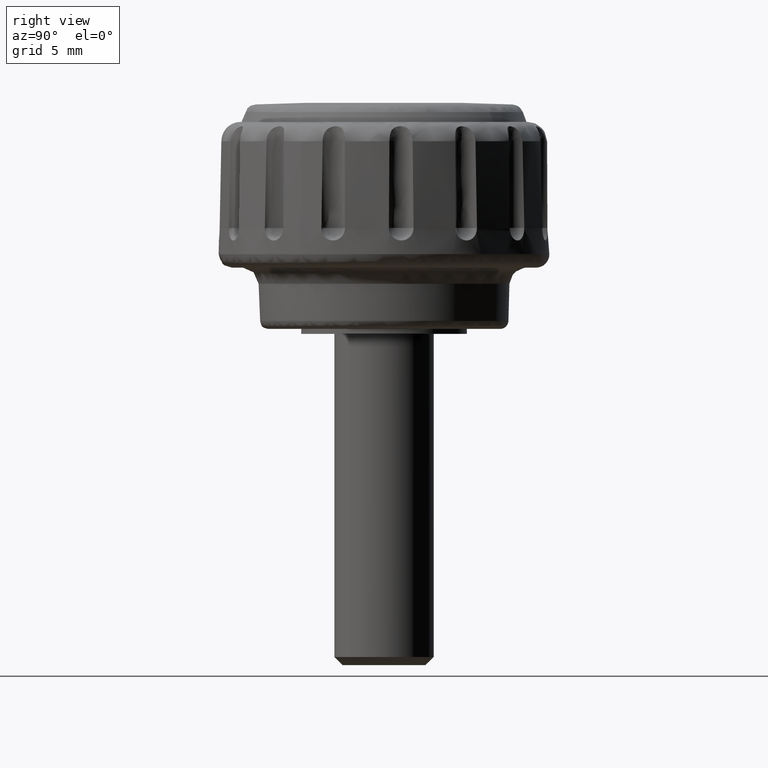
[diagram: clean part render]
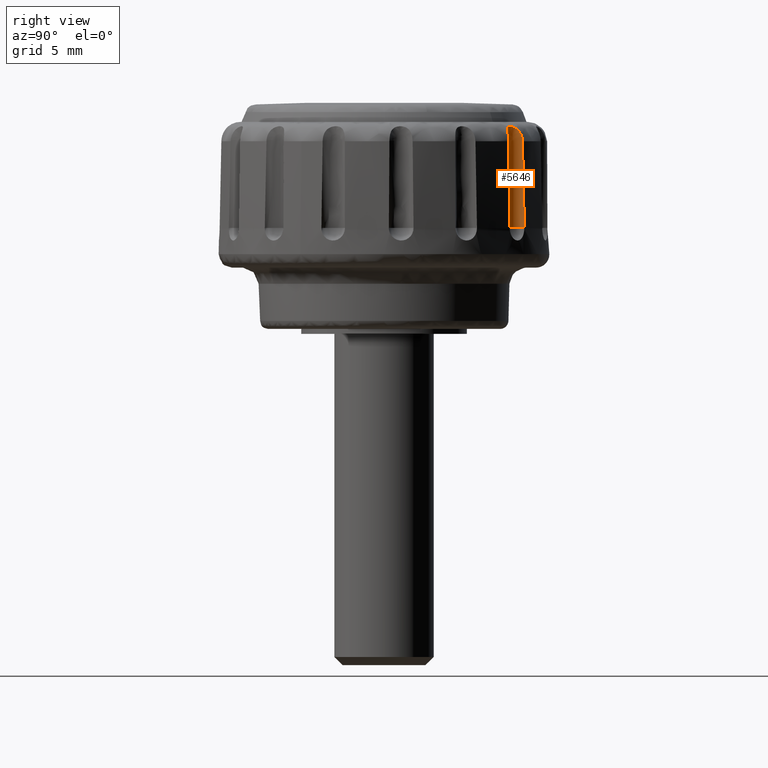
[diagram: same view with one face highlighted and labeled with its STEP entity id]
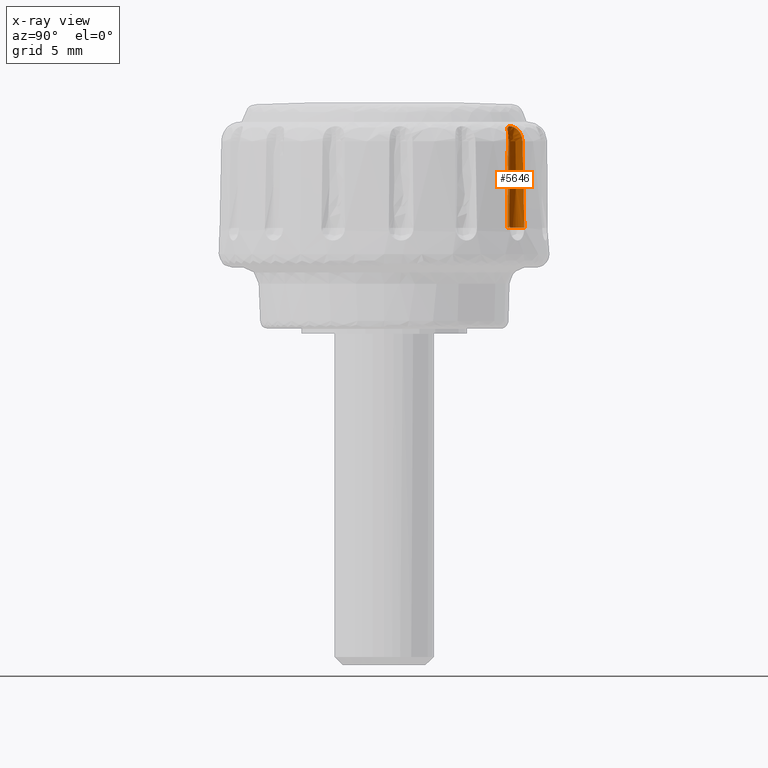
[diagram: x-ray of the same camera — body ghosted, the highlighted face saturated]
A machine part, right view. The second image highlights one B-rep face of the part: STEP entity #5646.
The next image is the same camera in x-ray: the body ghosted, the highlighted face saturated — about 0% of this face is hidden behind the body in this view.
In plain terms, the highlighted face is a freeform B-spline surface patch.
Its self-contained STEP definition (entity closure, byte-faithful):
#2481=CARTESIAN_POINT('',(5.202578638567950,8.358790936334280,11.624295663130360));
#2482=VERTEX_POINT('',#2481);
#2491=CARTESIAN_POINT('',(5.225436101967460,8.469077480441341,6.399993999999800));
#2492=VERTEX_POINT('',#2491);
#2493=CARTESIAN_POINT('',(5.202578638567950,8.358790936334280,11.624295663130360));
#2494=CARTESIAN_POINT('',(5.225436101967460,8.469077480441341,6.399993999999800));
#2495=QUASI_UNIFORM_CURVE('',1,(#2493,#2494),.UNSPECIFIED.,.F.,.U.);
#2496=EDGE_CURVE('',#2482,#2492,#2495,.T.);
#2498=CARTESIAN_POINT('',(6.439822766253950,7.586773923394639,6.399993999999790));
#2499=VERTEX_POINT('',#2498);
#2549=CARTESIAN_POINT('',(6.341997374460000,7.530954767502600,11.624295663130360));
#2550=VERTEX_POINT('',#2549);
#2551=CARTESIAN_POINT('',(6.439822766253950,7.586773923394639,6.399993999999790));
#2552=CARTESIAN_POINT('',(6.341997374460000,7.530954767502600,11.624295663130360));
#2553=QUASI_UNIFORM_CURVE('',1,(#2551,#2552),.UNSPECIFIED.,.F.,.U.);
#2554=EDGE_CURVE('',#2499,#2550,#2553,.T.);
#4145=CARTESIAN_POINT('',(5.202578638567954,8.358790936334279,11.624295663130360));
#4146=CARTESIAN_POINT('',(5.202405352730163,8.357504630605313,11.682749642530091));
#4147=CARTESIAN_POINT('',(5.201580158479978,8.351641633333461,11.740204651719431));
#4148=CARTESIAN_POINT('',(5.199257635281526,8.330970592415538,11.853172620679290));
#4149=CARTESIAN_POINT('',(5.197750743180889,8.316163071489381,11.908685527784311));
#4150=CARTESIAN_POINT('',(5.196104460959659,8.286588625154744,11.990376478088070));
#4151=CARTESIAN_POINT('',(5.195665121092652,8.275426315839988,12.017481844091940));
#4152=CARTESIAN_POINT('',(5.195322521556525,8.250766370831974,12.070368389816631));
#4153=CARTESIAN_POINT('',(5.195417949885146,8.237312385169782,12.096092910828689));
#4154=CARTESIAN_POINT('',(5.197019710921311,8.193546668916058,12.171068356548179));
#4155=CARTESIAN_POINT('',(5.199789536305400,8.159791542063799,12.218207881241471));
#4156=CARTESIAN_POINT('',(5.212533655444707,8.082820423220346,12.305781290728120));
#4157=CARTESIAN_POINT('',(5.222314562004177,8.040954400510460,12.344681769097591));
#4158=CARTESIAN_POINT('',(5.244901271880838,7.973987231637780,12.395845708990979));
#4159=CARTESIAN_POINT('',(5.253851146351733,7.950779583845309,12.411803205833211));
#4160=CARTESIAN_POINT('',(5.274413067642998,7.904424770825898,12.440502143775941));
#4161=CARTESIAN_POINT('',(5.286023532464295,7.881218985383524,12.453319384359650));
#4162=CARTESIAN_POINT('',(5.312160043635034,7.835011833502244,12.476120747023611));
#4163=CARTESIAN_POINT('',(5.326684060882914,7.812009831197656,12.486105865227101));
#4164=CARTESIAN_POINT('',(5.358987202811243,7.766455227740957,12.503350211180219));
#4165=CARTESIAN_POINT('',(5.376724571660089,7.744015630794710,12.510544464145109));
#4166=CARTESIAN_POINT('',(5.414403813918047,7.701315392275260,12.521898031999751));
#4167=CARTESIAN_POINT('',(5.434477422511567,7.680858171144532,12.526135580710680));
#4168=CARTESIAN_POINT('',(5.477181430701021,7.641844787295915,12.531865202224751));
#4169=CARTESIAN_POINT('',(5.500018099819307,7.623148604397185,12.533350443017881));
#4170=CARTESIAN_POINT('',(5.570753618102214,7.571489718549797,12.533539481046761));
#4171=CARTESIAN_POINT('',(5.620923845358994,7.542698095292480,12.528226050742820));
#4172=CARTESIAN_POINT('',(5.726596209268394,7.496294242772815,12.505768157004900));
#4173=CARTESIAN_POINT('',(5.779647065439432,7.479752154110593,12.489111583426430));
#4174=CARTESIAN_POINT('',(5.858688404677172,7.463294481976338,12.454915753429370));
#4175=CARTESIAN_POINT('',(5.884880577664947,7.459250216643176,12.441951644652720));
#4176=CARTESIAN_POINT('',(5.935328406487302,7.453839598600663,12.413510569114621));
#4177=CARTESIAN_POINT('',(5.959791563871687,7.452426617927505,12.397949103857099));
#4178=CARTESIAN_POINT('',(6.007099457027013,7.451718628290244,12.364041340103981));
#4179=CARTESIAN_POINT('',(6.030077632702817,7.452439256315854,12.345562336216769));
#4180=CARTESIAN_POINT('',(6.073405527477990,7.455497397445180,12.306498559586430));
#4181=CARTESIAN_POINT('',(6.093807006915248,7.457819286703219,12.285907748938010));
#4182=CARTESIAN_POINT('',(6.151404769922446,7.466378376837032,12.221028789507310));
#4183=CARTESIAN_POINT('',(6.185218300688606,7.474269052530530,12.173132669877541));
#4184=CARTESIAN_POINT('',(6.241771094571190,7.490292027663982,12.073093106439350));
#4185=CARTESIAN_POINT('',(6.264879022639238,7.498464950098553,12.020708147778620));
#4186=CARTESIAN_POINT('',(6.292848898411409,7.509262429374036,11.938823318943470));
#4187=CARTESIAN_POINT('',(6.301073703466315,7.512637125538382,11.910853656892170));
#4188=CARTESIAN_POINT('',(6.315171267729706,7.518623919595113,11.854547716690540));
#4189=CARTESIAN_POINT('',(6.321060922650848,7.521241181346702,11.826202720674781));
#4190=CARTESIAN_POINT('',(6.335488705422140,7.527785197845662,11.740614259449750));
#4191=CARTESIAN_POINT('',(6.340826117718097,7.530391772892389,11.682822376165900));
#4192=CARTESIAN_POINT('',(6.341997374460000,7.530954767502600,11.624295663130360));
#4193=B_SPLINE_CURVE_WITH_KNOTS('',3,(#4145,#4146,#4147,#4148,#4149,#4150,#4151,#4152,#4153,#4154,#4155,#4156,#4157,#4158,#4159,#4160,#4161,#4162,#4163,#4164,#4165,#4166,#4167,#4168,#4169,#4170,#4171,#4172,#4173,#4174,#4175,#4176,#4177,#4178,#4179,#4180,#4181,#4182,#4183,#4184,#4185,#4186,#4187,#4188,#4189,#4190,#4191,#4192),.UNSPECIFIED.,.F.,.U.,(4,2,2,2,2,2,2,2,2,2,2,2,2,2,2,2,2,2,2,2,2,2,2,4),(0.0,0.062500000000000,0.125000000000000,0.156250000000000,0.187500000000000,0.250000000000000,0.312499999999999,0.343749999999999,0.375000000000000,0.406250000000000,0.437500000000000,0.468750000000001,0.500000000000001,0.562500000000001,0.625000000000000,0.656250000000001,0.687500000000001,0.718750000000001,0.750000000000002,0.812500000000002,0.875000000000002,0.906250000000002,0.937500000000001,1.0),.UNSPECIFIED.);
#4194=EDGE_CURVE('',#2482,#2550,#4193,.T.);
#5126=CARTESIAN_POINT('',(5.225436101967460,8.469077480441341,6.399993999999800));
#5127=CARTESIAN_POINT('',(5.204760010888575,8.395857207119168,6.399993999999797));
#5128=CARTESIAN_POINT('',(5.185903027014784,8.253639298518122,6.399993999999806));
#5129=CARTESIAN_POINT('',(5.213235781311446,8.051034528603918,6.399993999999788));
#5130=CARTESIAN_POINT('',(5.276316533334637,7.889322452712246,6.399993999999824));
#5131=CARTESIAN_POINT('',(5.361695917891254,7.756597151837685,6.399993999999801));
#5132=CARTESIAN_POINT('',(5.455691711630222,7.656161581247083,6.399993999999805));
#5133=CARTESIAN_POINT('',(5.581471799052865,7.561056043446325,6.399993999999822));
#5134=CARTESIAN_POINT('',(5.719684819487717,7.494693484167496,6.399993999999760));
#5135=CARTESIAN_POINT('',(5.877988240148842,7.456240242318128,6.399993999999855));
#5136=CARTESIAN_POINT('',(6.061117271195643,7.445599238294464,6.399993999999834));
#5137=CARTESIAN_POINT('',(6.257549673336662,7.485244996769158,6.399993999999670));
#5138=CARTESIAN_POINT('',(6.389218328312659,7.552962067492142,6.399993999999933));
#5139=CARTESIAN_POINT('',(6.439822766253950,7.586773923394639,6.399993999999790));
#5140=B_SPLINE_CURVE_WITH_KNOTS('',3,(#5126,#5127,#5128,#5129,#5130,#5131,#5132,#5133,#5134,#5135,#5136,#5137,#5138,#5139),.UNSPECIFIED.,.F.,.U.,(4,1,1,1,1,1,1,1,1,1,1,4),(0.000000102793447,0.228243334486441,0.426056483885471,0.608655862215589,0.745613527162941,0.897772689182587,1.019482119552633,1.217308935377871,1.354252789536508,1.506423355618439,1.765104510689156,1.947696420817147),.UNSPECIFIED.);
#5141=EDGE_CURVE('',#2492,#2499,#5140,.T.);
#5622=CARTESIAN_POINT('',(5.235318975109681,8.501485675835330,12.686751184327020));
#5623=CARTESIAN_POINT('',(5.235318975109681,8.501485675835330,6.242825070391609));
#5624=CARTESIAN_POINT('',(5.052376081477648,7.944159019090023,12.686751184327020));
#5625=CARTESIAN_POINT('',(5.052376081477648,7.944159019090023,6.242825070391609));
#5626=CARTESIAN_POINT('',(5.528895972026243,7.602091922512583,12.686751184327020));
#5627=CARTESIAN_POINT('',(5.528895972026243,7.602091922512583,6.242825070391609));
#5628=CARTESIAN_POINT('',(6.005415862574837,7.260024825935144,12.686751184327020));
#5629=CARTESIAN_POINT('',(6.005415862574837,7.260024825935144,6.242825070391609));
#5630=CARTESIAN_POINT('',(6.474943345541075,7.611628363159603,12.686751184327020));
#5631=CARTESIAN_POINT('',(6.474943345541075,7.611628363159603,6.242825070391609));
#5639=(BOUNDED_SURFACE()B_SPLINE_SURFACE(1,2,((#5622,#5624,#5626,#5628,#5630),(#5623,#5625,#5627,#5629,#5631)),.UNSPECIFIED.,.F.,.F.,.U.)B_SPLINE_SURFACE_WITH_KNOTS((2,2),(3,2,3),(0.0,6.443926113935414),(0.0,1.0,2.0),.UNSPECIFIED.)GEOMETRIC_REPRESENTATION_ITEM()RATIONAL_B_SPLINE_SURFACE(((1.0,0.806444604267483,1.0,0.806444604267483,1.0),(1.0,0.806444604267483,1.0,0.806444604267483,1.0)))REPRESENTATION_ITEM('')SURFACE());
#5640=ORIENTED_EDGE('',*,*,#4194,.T.);
#5641=ORIENTED_EDGE('',*,*,#2554,.F.);
#5642=ORIENTED_EDGE('',*,*,#5141,.F.);
#5643=ORIENTED_EDGE('',*,*,#2496,.F.);
#5644=EDGE_LOOP('',(#5640,#5641,#5642,#5643));
#5645=FACE_OUTER_BOUND('',#5644,.T.);
#5646=ADVANCED_FACE('',(#5645),#5639,.F.);